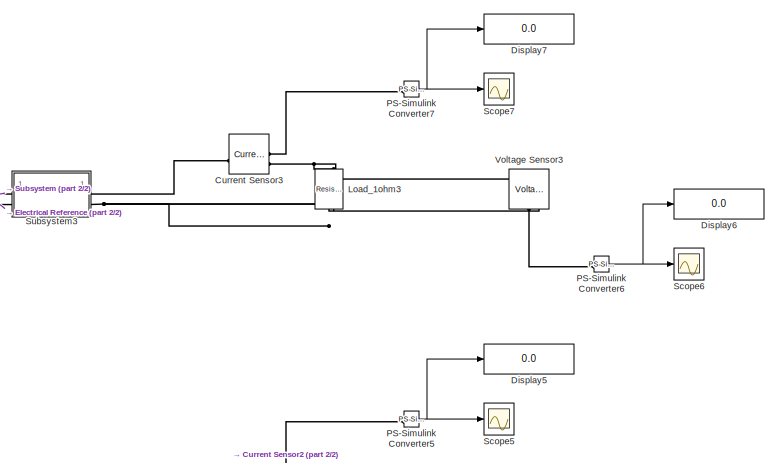
[diagram: root canvas - part 1/2, top right region]
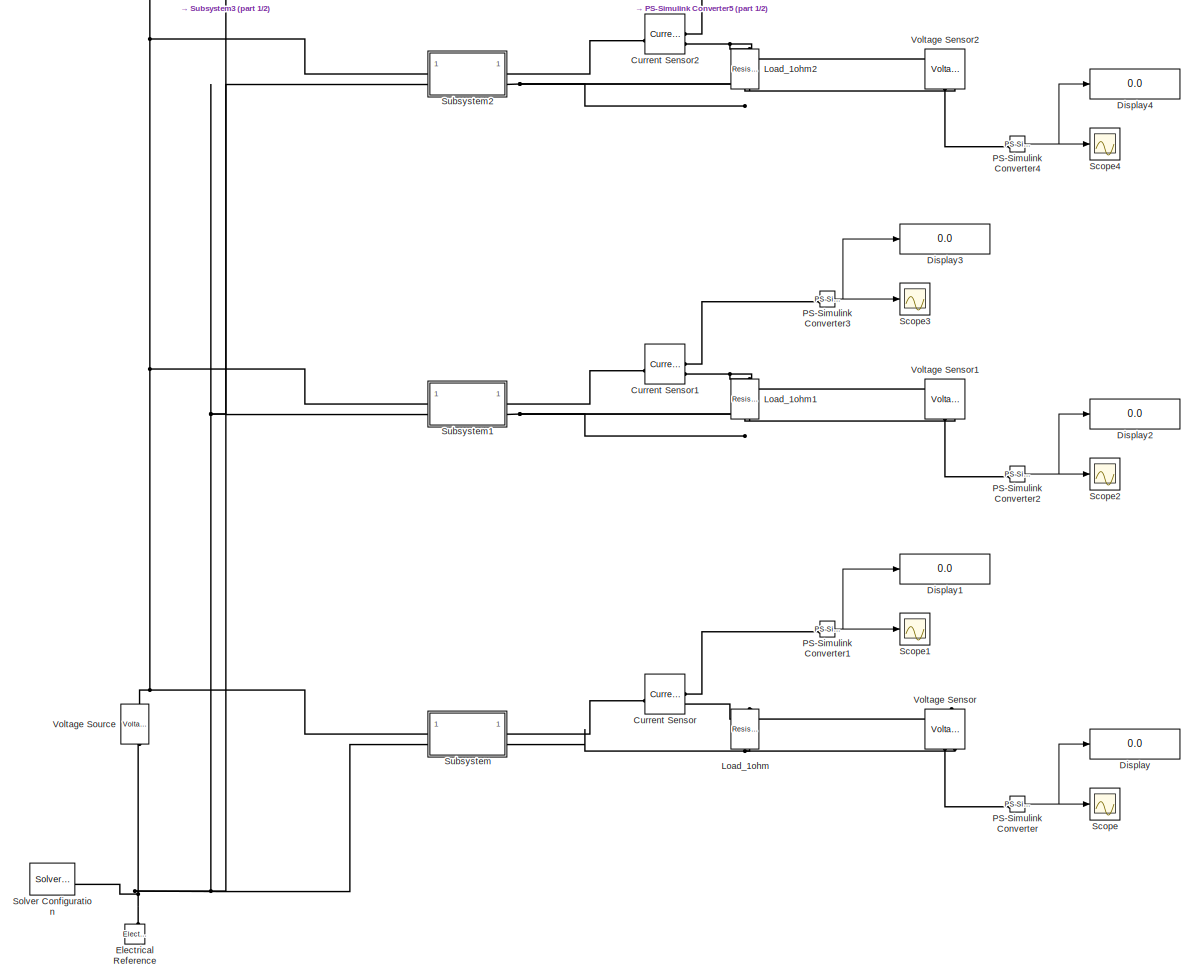
[diagram: root canvas - part 2/2, full width, middle band]
MODEL slx_59cdadc9b2fa
KIND model
CONFIG AbsTol = auto
CONFIG EnableMultiTasking = off
CONFIG FixedStep = auto
CONFIG MaxStep = auto
CONFIG MinStep = auto
CONFIG RelTol = 1e-3
CONFIG SampleTimeConstraint = Unconstrained
CONFIG SolverName = VariableStepAuto
CONFIG StartTime = 0.0
CONFIG StopTime = 1
BLOCK [Reference] Current Sensor  REF=fl_lib/Electrical/Electrical Sensors/Current Sensor
  SourceBlock = fl_lib/Electrical/Electrical Sensors/Current Sensor
  SourceType = Current Sensor
BLOCK [Reference] Current Sensor1  REF=fl_lib/Electrical/Electrical Sensors/Current Sensor
  SourceBlock = fl_lib/Electrical/Electrical Sensors/Current Sensor
  SourceType = Current Sensor
BLOCK [Reference] Current Sensor2  REF=fl_lib/Electrical/Electrical Sensors/Current Sensor
  SourceBlock = fl_lib/Electrical/Electrical Sensors/Current Sensor
  SourceType = Current Sensor
BLOCK [Reference] Current Sensor3  REF=fl_lib/Electrical/Electrical Sensors/Current Sensor
  SourceBlock = fl_lib/Electrical/Electrical Sensors/Current Sensor
  SourceType = Current Sensor
BLOCK [Display] Display
  Decimation = 1
BLOCK [Display] Display1
  Decimation = 1
BLOCK [Display] Display2
  Decimation = 1
BLOCK [Display] Display3
  Decimation = 1
BLOCK [Display] Display4
  Decimation = 1
BLOCK [Display] Display5
  Decimation = 1
BLOCK [Display] Display6
  Decimation = 1
BLOCK [Display] Display7
  Decimation = 1
BLOCK [Reference] Electrical Reference  REF=fl_lib/Electrical/Electrical Elements/Electrical Reference
  NameLocation = right
  SourceBlock = fl_lib/Electrical/Electrical Elements/Electrical Reference
  SourceType = Electrical Reference
BLOCK [Reference] Load_1ohm  REF=fl_lib/Electrical/Electrical Elements/Resistor
  NameLocation = left
  SourceBlock = fl_lib/Electrical/Electrical Elements/Resistor
  SourceType = Resistor
BLOCK [Reference] Load_1ohm1  REF=fl_lib/Electrical/Electrical Elements/Resistor
  NameLocation = left
  SourceBlock = fl_lib/Electrical/Electrical Elements/Resistor
  SourceType = Resistor
BLOCK [Reference] Load_1ohm2  REF=fl_lib/Electrical/Electrical Elements/Resistor
  NameLocation = left
  SourceBlock = fl_lib/Electrical/Electrical Elements/Resistor
  SourceType = Resistor
BLOCK [Reference] Load_1ohm3  REF=fl_lib/Electrical/Electrical Elements/Resistor
  NameLocation = left
  SourceBlock = fl_lib/Electrical/Electrical Elements/Resistor
  SourceType = Resistor
BLOCK [Reference] PS-Simulink Converter  REF=nesl_utility/PS-Simulink
Converter
  SourceBlock = nesl_utility/PS-Simulink\nConverter
  SourceType = PS-Simulink\nConverter
BLOCK [Reference] PS-Simulink Converter1  REF=nesl_utility/PS-Simulink
Converter
  SourceBlock = nesl_utility/PS-Simulink\nConverter
  SourceType = PS-Simulink\nConverter
BLOCK [Reference] PS-Simulink Converter2  REF=nesl_utility/PS-Simulink
Converter
  SourceBlock = nesl_utility/PS-Simulink\nConverter
  SourceType = PS-Simulink\nConverter
BLOCK [Reference] PS-Simulink Converter3  REF=nesl_utility/PS-Simulink
Converter
  SourceBlock = nesl_utility/PS-Simulink\nConverter
  SourceType = PS-Simulink\nConverter
BLOCK [Reference] PS-Simulink Converter4  REF=nesl_utility/PS-Simulink
Converter
  SourceBlock = nesl_utility/PS-Simulink\nConverter
  SourceType = PS-Simulink\nConverter
BLOCK [Reference] PS-Simulink Converter5  REF=nesl_utility/PS-Simulink
Converter
  SourceBlock = nesl_utility/PS-Simulink\nConverter
  SourceType = PS-Simulink\nConverter
BLOCK [Reference] PS-Simulink Converter6  REF=nesl_utility/PS-Simulink
Converter
  SourceBlock = nesl_utility/PS-Simulink\nConverter
  SourceType = PS-Simulink\nConverter
BLOCK [Reference] PS-Simulink Converter7  REF=nesl_utility/PS-Simulink
Converter
  SourceBlock = nesl_utility/PS-Simulink\nConverter
  SourceType = PS-Simulink\nConverter
BLOCK [Scope] Scope
  Floating = off
  NumInputPorts = 1
  ScopeSpecificationString = Simulink.scopes.TimeScopeBlockCfg('CurrentConfiguration', extmgr.ConfigurationSet(extmgr.Configuration('Core','General UI',true),extmgr.Configuration('Core','Source UI',true),extmgr.Configuration('Sources','WiredSimulink',true),extmgr.Configuration('Visuals','Time Domain',true,'SerializedDisplays',{struct('MinYLimReal','10.01162','MaxYLimReal','10.01211','YLabelReal','','MinYLimMag','10.01162','Ma...<+1430ch>
BLOCK [Scope] Scope1
  Floating = off
  NumInputPorts = 1
  ScopeSpecificationString = Simulink.scopes.TimeScopeBlockCfg('CurrentConfiguration', extmgr.ConfigurationSet(extmgr.Configuration('Core','General UI',true),extmgr.Configuration('Core','Source UI',true),extmgr.Configuration('Sources','WiredSimulink',true,'DataLoggingVariableName','ScopeData1'),extmgr.Configuration('Visuals','Time Domain',true,'SerializedDisplays',{struct('MinYLimReal','4.24272','MaxYLimReal','4.24321','YLabe...<+1379ch>
BLOCK [Scope] Scope2
  Floating = off
  NumInputPorts = 1
  ScopeSpecificationString = Simulink.scopes.TimeScopeBlockCfg('CurrentConfiguration', extmgr.ConfigurationSet(extmgr.Configuration('Core','General UI',true),extmgr.Configuration('Core','Source UI',true),extmgr.Configuration('Sources','WiredSimulink',true,'DataLoggingVariableName','ScopeData2'),extmgr.Configuration('Visuals','Time Domain',true,'SerializedDisplays',{struct('MinYLimReal','10.01162','MaxYLimReal','10.01211','YLa...<+1470ch>
BLOCK [Scope] Scope3
  Floating = off
  NumInputPorts = 1
  ScopeSpecificationString = Simulink.scopes.TimeScopeBlockCfg('CurrentConfiguration', extmgr.ConfigurationSet(extmgr.Configuration('Core','General UI',true),extmgr.Configuration('Core','Source UI',true),extmgr.Configuration('Sources','WiredSimulink',true,'DataLoggingVariableName','ScopeData3'),extmgr.Configuration('Visuals','Time Domain',true,'SerializedDisplays',{struct('MinYLimReal','4.24272','MaxYLimReal','4.24321','YLabe...<+1379ch>
BLOCK [Scope] Scope4
  Floating = off
  NumInputPorts = 1
  ScopeSpecificationString = Simulink.scopes.TimeScopeBlockCfg('CurrentConfiguration', extmgr.ConfigurationSet(extmgr.Configuration('Core','General UI',true),extmgr.Configuration('Core','Source UI',true),extmgr.Configuration('Sources','WiredSimulink',true,'DataLoggingVariableName','ScopeData4'),extmgr.Configuration('Visuals','Time Domain',true,'SerializedDisplays',{struct('MinYLimReal','10.01162','MaxYLimReal','10.01211','YLa...<+1470ch>
BLOCK [Scope] Scope5
  Floating = off
  NumInputPorts = 1
  ScopeSpecificationString = Simulink.scopes.TimeScopeBlockCfg('CurrentConfiguration', extmgr.ConfigurationSet(extmgr.Configuration('Core','General UI',true),extmgr.Configuration('Core','Source UI',true),extmgr.Configuration('Sources','WiredSimulink',true,'DataLoggingVariableName','ScopeData5'),extmgr.Configuration('Visuals','Time Domain',true,'SerializedDisplays',{struct('MinYLimReal','4.24272','MaxYLimReal','4.24321','YLabe...<+1379ch>
BLOCK [Scope] Scope6
  Floating = off
  NumInputPorts = 1
  ScopeSpecificationString = Simulink.scopes.TimeScopeBlockCfg('CurrentConfiguration', extmgr.ConfigurationSet(extmgr.Configuration('Core','General UI',true),extmgr.Configuration('Core','Source UI',true),extmgr.Configuration('Sources','WiredSimulink',true,'DataLoggingVariableName','ScopeData6'),extmgr.Configuration('Visuals','Time Domain',true,'SerializedDisplays',{struct('MinYLimReal','10.01162','MaxYLimReal','10.01211','YLa...<+1470ch>
BLOCK [Scope] Scope7
  Floating = off
  NumInputPorts = 1
  ScopeSpecificationString = Simulink.scopes.TimeScopeBlockCfg('CurrentConfiguration', extmgr.ConfigurationSet(extmgr.Configuration('Core','General UI',true),extmgr.Configuration('Core','Source UI',true),extmgr.Configuration('Sources','WiredSimulink',true,'DataLoggingVariableName','ScopeData7'),extmgr.Configuration('Visuals','Time Domain',true,'SerializedDisplays',{struct('MinYLimReal','4.24272','MaxYLimReal','4.24321','YLabe...<+1379ch>
BLOCK [Reference] Solver Configuration  REF=nesl_utility/Solver
Configuration
  SourceBlock = nesl_utility/Solver\nConfiguration
  SourceType = Solver\nConfiguration
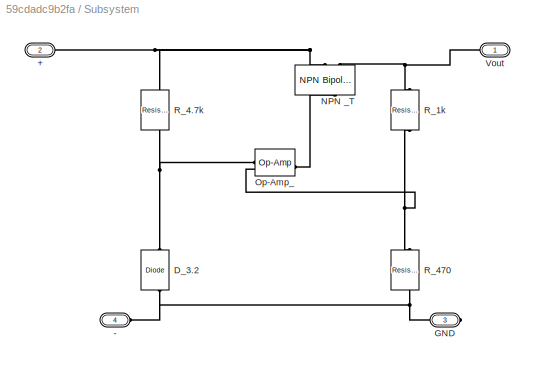
BLOCK [SubSystem] Subsystem
BLOCK [PMIOPort] Subsystem/+
  Port = 2
  Side = Left
BLOCK [PMIOPort] Subsystem/-
  Port = 4
  Side = Left
BLOCK [Reference] Subsystem/D_3.2  REF=ee_lib/Semiconductors &
Converters/Diode
  NameLocation = right
  SourceBlock = ee_lib/Semiconductors &\nConverters/Diode
  SourceType = Diode
BLOCK [PMIOPort] Subsystem/GND
  Port = 3
  Side = Right
BLOCK [Reference] Subsystem/NPN _T  REF=ee_lib/Semiconductors &
Converters/NPN Bipolar
Transistor
  NameLocation = right
  SourceBlock = ee_lib/Semiconductors &\nConverters/NPN Bipolar\nTransistor
  SourceType = NPN Bipolar\nTransistor
BLOCK [Reference] Subsystem/Op-Amp_  REF=fl_lib/Electrical/Electrical Elements/Op-Amp
  SourceBlock = fl_lib/Electrical/Electrical Elements/Op-Amp
  SourceType = Op-Amp
BLOCK [Reference] Subsystem/R_1k  REF=fl_lib/Electrical/Electrical Elements/Resistor
  NameLocation = left
  SourceBlock = fl_lib/Electrical/Electrical Elements/Resistor
  SourceType = Resistor
BLOCK [Reference] Subsystem/R_4.7k  REF=fl_lib/Electrical/Electrical Elements/Resistor
  NameLocation = left
  SourceBlock = fl_lib/Electrical/Electrical Elements/Resistor
  SourceType = Resistor
BLOCK [Reference] Subsystem/R_470  REF=fl_lib/Electrical/Electrical Elements/Resistor
  NameLocation = left
  SourceBlock = fl_lib/Electrical/Electrical Elements/Resistor
  SourceType = Resistor
BLOCK [PMIOPort] Subsystem/Vout
  Side = Right
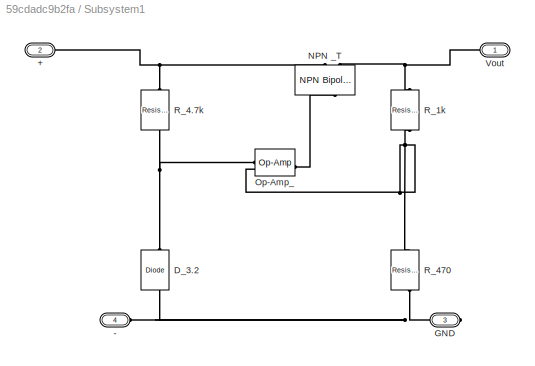
BLOCK [SubSystem] Subsystem1
BLOCK [PMIOPort] Subsystem1/+
  Port = 2
  Side = Left
BLOCK [PMIOPort] Subsystem1/-
  Port = 4
  Side = Left
BLOCK [Reference] Subsystem1/D_3.2  REF=ee_lib/Semiconductors &
Converters/Diode
  NameLocation = right
  SourceBlock = ee_lib/Semiconductors &\nConverters/Diode
  SourceType = Diode
BLOCK [PMIOPort] Subsystem1/GND
  Port = 3
  Side = Right
BLOCK [Reference] Subsystem1/NPN _T  REF=ee_lib/Semiconductors &
Converters/NPN Bipolar
Transistor
  NameLocation = right
  SourceBlock = ee_lib/Semiconductors &\nConverters/NPN Bipolar\nTransistor
  SourceType = NPN Bipolar\nTransistor
BLOCK [Reference] Subsystem1/Op-Amp_  REF=fl_lib/Electrical/Electrical Elements/Op-Amp
  SourceBlock = fl_lib/Electrical/Electrical Elements/Op-Amp
  SourceType = Op-Amp
BLOCK [Reference] Subsystem1/R_1k  REF=fl_lib/Electrical/Electrical Elements/Resistor
  NameLocation = left
  SourceBlock = fl_lib/Electrical/Electrical Elements/Resistor
  SourceType = Resistor
BLOCK [Reference] Subsystem1/R_4.7k  REF=fl_lib/Electrical/Electrical Elements/Resistor
  NameLocation = left
  SourceBlock = fl_lib/Electrical/Electrical Elements/Resistor
  SourceType = Resistor
BLOCK [Reference] Subsystem1/R_470  REF=fl_lib/Electrical/Electrical Elements/Resistor
  NameLocation = left
  SourceBlock = fl_lib/Electrical/Electrical Elements/Resistor
  SourceType = Resistor
BLOCK [PMIOPort] Subsystem1/Vout
  Side = Right
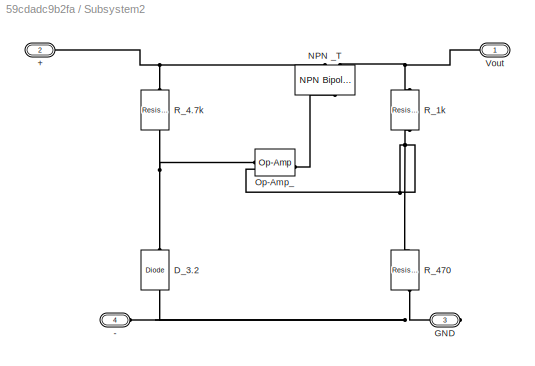
BLOCK [SubSystem] Subsystem2
BLOCK [PMIOPort] Subsystem2/+
  Port = 2
  Side = Left
BLOCK [PMIOPort] Subsystem2/-
  Port = 4
  Side = Left
BLOCK [Reference] Subsystem2/D_3.2  REF=ee_lib/Semiconductors &
Converters/Diode
  NameLocation = right
  SourceBlock = ee_lib/Semiconductors &\nConverters/Diode
  SourceType = Diode
BLOCK [PMIOPort] Subsystem2/GND
  Port = 3
  Side = Right
BLOCK [Reference] Subsystem2/NPN _T  REF=ee_lib/Semiconductors &
Converters/NPN Bipolar
Transistor
  NameLocation = right
  SourceBlock = ee_lib/Semiconductors &\nConverters/NPN Bipolar\nTransistor
  SourceType = NPN Bipolar\nTransistor
BLOCK [Reference] Subsystem2/Op-Amp_  REF=fl_lib/Electrical/Electrical Elements/Op-Amp
  SourceBlock = fl_lib/Electrical/Electrical Elements/Op-Amp
  SourceType = Op-Amp
BLOCK [Reference] Subsystem2/R_1k  REF=fl_lib/Electrical/Electrical Elements/Resistor
  NameLocation = left
  SourceBlock = fl_lib/Electrical/Electrical Elements/Resistor
  SourceType = Resistor
BLOCK [Reference] Subsystem2/R_4.7k  REF=fl_lib/Electrical/Electrical Elements/Resistor
  NameLocation = left
  SourceBlock = fl_lib/Electrical/Electrical Elements/Resistor
  SourceType = Resistor
BLOCK [Reference] Subsystem2/R_470  REF=fl_lib/Electrical/Electrical Elements/Resistor
  NameLocation = left
  SourceBlock = fl_lib/Electrical/Electrical Elements/Resistor
  SourceType = Resistor
BLOCK [PMIOPort] Subsystem2/Vout
  Side = Right
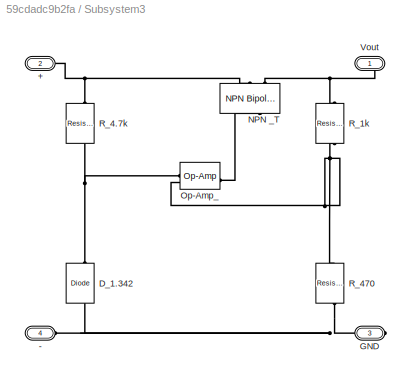
BLOCK [SubSystem] Subsystem3
BLOCK [PMIOPort] Subsystem3/+
  Port = 2
  Side = Left
BLOCK [PMIOPort] Subsystem3/-
  Port = 4
  Side = Left
BLOCK [Reference] Subsystem3/D_1.342  REF=ee_lib/Semiconductors &
Converters/Diode
  NameLocation = right
  SourceBlock = ee_lib/Semiconductors &\nConverters/Diode
  SourceType = Diode
BLOCK [PMIOPort] Subsystem3/GND
  Port = 3
  Side = Right
BLOCK [Reference] Subsystem3/NPN _T  REF=ee_lib/Semiconductors &
Converters/NPN Bipolar
Transistor
  NameLocation = top
  SourceBlock = ee_lib/Semiconductors &\nConverters/NPN Bipolar\nTransistor
  SourceType = NPN Bipolar\nTransistor
BLOCK [Reference] Subsystem3/Op-Amp_  REF=fl_lib/Electrical/Electrical Elements/Op-Amp
  SourceBlock = fl_lib/Electrical/Electrical Elements/Op-Amp
  SourceType = Op-Amp
BLOCK [Reference] Subsystem3/R_1k  REF=fl_lib/Electrical/Electrical Elements/Resistor
  NameLocation = left
  SourceBlock = fl_lib/Electrical/Electrical Elements/Resistor
  SourceType = Resistor
BLOCK [Reference] Subsystem3/R_4.7k  REF=fl_lib/Electrical/Electrical Elements/Resistor
  NameLocation = left
  SourceBlock = fl_lib/Electrical/Electrical Elements/Resistor
  SourceType = Resistor
BLOCK [Reference] Subsystem3/R_470  REF=fl_lib/Electrical/Electrical Elements/Resistor
  NameLocation = left
  SourceBlock = fl_lib/Electrical/Electrical Elements/Resistor
  SourceType = Resistor
BLOCK [PMIOPort] Subsystem3/Vout
  Side = Right
BLOCK [Reference] Voltage Sensor  REF=fl_lib/Electrical/Electrical Sensors/Voltage Sensor
  NameLocation = right
  SourceBlock = fl_lib/Electrical/Electrical Sensors/Voltage Sensor
  SourceType = Voltage Sensor
BLOCK [Reference] Voltage Sensor1  REF=fl_lib/Electrical/Electrical Sensors/Voltage Sensor
  NameLocation = right
  SourceBlock = fl_lib/Electrical/Electrical Sensors/Voltage Sensor
  SourceType = Voltage Sensor
BLOCK [Reference] Voltage Sensor2  REF=fl_lib/Electrical/Electrical Sensors/Voltage Sensor
  NameLocation = right
  SourceBlock = fl_lib/Electrical/Electrical Sensors/Voltage Sensor
  SourceType = Voltage Sensor
BLOCK [Reference] Voltage Sensor3  REF=fl_lib/Electrical/Electrical Sensors/Voltage Sensor
  NameLocation = right
  SourceBlock = fl_lib/Electrical/Electrical Sensors/Voltage Sensor
  SourceType = Voltage Sensor
BLOCK [Reference] Voltage Source  REF=ee_lib/Sources/Voltage Source
  NameLocation = right
  SourceBlock = ee_lib/Sources/Voltage Source
  SourceType = Voltage Source
NET PS-Simulink Converter1:1 -> Display1:1, Scope1:1
NET PS-Simulink Converter2:1 -> Display2:1, Scope2:1
NET PS-Simulink Converter3:1 -> Display3:1, Scope3:1
NET PS-Simulink Converter4:1 -> Display4:1, Scope4:1
NET PS-Simulink Converter5:1 -> Display5:1, Scope5:1
NET PS-Simulink Converter6:1 -> Display6:1, Scope6:1
NET PS-Simulink Converter7:1 -> Display7:1, Scope7:1
NET PS-Simulink Converter:1 -> Display:1, Scope:1
PLINE Current Sensor1:LConn1 -- Subsystem1:RConn1
PLINE Current Sensor1:RConn1 -- PS-Simulink Converter3:LConn1
PNET net1: Current Sensor1:RConn2 -- Load_1ohm1:LConn1 -- Voltage Sensor1:LConn1
PLINE Current Sensor2:LConn1 -- Subsystem2:RConn1
PLINE Current Sensor2:RConn1 -- PS-Simulink Converter5:LConn1
PNET net2: Current Sensor2:RConn2 -- Load_1ohm2:LConn1 -- Voltage Sensor2:LConn1
PLINE Current Sensor3:LConn1 -- Subsystem3:RConn1
PLINE Current Sensor3:RConn1 -- PS-Simulink Converter7:LConn1
PNET net3: Current Sensor3:RConn2 -- Load_1ohm3:LConn1 -- Voltage Sensor3:LConn1
PLINE Current Sensor:LConn1 -- Subsystem:RConn1
PLINE Current Sensor:RConn1 -- PS-Simulink Converter1:LConn1
PNET net4: Current Sensor:RConn2 -- Load_1ohm:LConn1 -- Voltage Sensor:LConn1
PNET net5: Electrical Reference:LConn1 -- Solver Configuration:RConn1 -- Subsystem1:LConn2 -- Subsystem2:LConn2 -- Subsystem3:LConn2 -- Subsystem:LConn2 -- Voltage Source:RConn1
PNET net6: Load_1ohm1:RConn1 -- Subsystem1:RConn2 -- Voltage Sensor1:RConn2
PNET net7: Load_1ohm2:RConn1 -- Subsystem2:RConn2 -- Voltage Sensor2:RConn2
PNET net8: Load_1ohm3:RConn1 -- Subsystem3:RConn2 -- Voltage Sensor3:RConn2
PNET net9: Load_1ohm:RConn1 -- Subsystem:RConn2 -- Voltage Sensor:RConn2
PLINE PS-Simulink Converter2:LConn1 -- Voltage Sensor1:RConn1
PLINE PS-Simulink Converter4:LConn1 -- Voltage Sensor2:RConn1
PLINE PS-Simulink Converter6:LConn1 -- Voltage Sensor3:RConn1
PLINE PS-Simulink Converter:LConn1 -- Voltage Sensor:RConn1
PNET net10: Subsystem/+:RConn1 -- Subsystem/NPN _T:RConn1 -- Subsystem/R_4.7k:LConn1
PNET net11: Subsystem/-:RConn1 -- Subsystem/D_3.2:LConn1 -- Subsystem/GND:RConn1 -- Subsystem/R_470:RConn1
PNET net12: Subsystem/D_3.2:RConn1 -- Subsystem/Op-Amp_:LConn1 -- Subsystem/R_4.7k:RConn1
PLINE Subsystem/NPN _T:LConn1 -- Subsystem/Op-Amp_:RConn1
PNET net13: Subsystem/NPN _T:RConn2 -- Subsystem/R_1k:LConn1 -- Subsystem/Vout:RConn1
PNET net14: Subsystem/Op-Amp_:LConn2 -- Subsystem/R_1k:RConn1 -- Subsystem/R_470:LConn1
PNET net15: Subsystem1/+:RConn1 -- Subsystem1/NPN _T:RConn1 -- Subsystem1/R_4.7k:LConn1
PNET net16: Subsystem1/-:RConn1 -- Subsystem1/D_3.2:LConn1 -- Subsystem1/GND:RConn1 -- Subsystem1/R_470:RConn1
PNET net17: Subsystem1/D_3.2:RConn1 -- Subsystem1/Op-Amp_:LConn1 -- Subsystem1/R_4.7k:RConn1
PLINE Subsystem1/NPN _T:LConn1 -- Subsystem1/Op-Amp_:RConn1
PNET net18: Subsystem1/NPN _T:RConn2 -- Subsystem1/R_1k:LConn1 -- Subsystem1/Vout:RConn1
PNET net19: Subsystem1/Op-Amp_:LConn2 -- Subsystem1/R_1k:RConn1 -- Subsystem1/R_470:LConn1
PNET net20: Subsystem1:LConn1 -- Subsystem2:LConn1 -- Subsystem3:LConn1 -- Subsystem:LConn1 -- Voltage Source:LConn1
PNET net21: Subsystem2/+:RConn1 -- Subsystem2/NPN _T:RConn1 -- Subsystem2/R_4.7k:LConn1
PNET net22: Subsystem2/-:RConn1 -- Subsystem2/D_3.2:LConn1 -- Subsystem2/GND:RConn1 -- Subsystem2/R_470:RConn1
PNET net23: Subsystem2/D_3.2:RConn1 -- Subsystem2/Op-Amp_:LConn1 -- Subsystem2/R_4.7k:RConn1
PLINE Subsystem2/NPN _T:LConn1 -- Subsystem2/Op-Amp_:RConn1
PNET net24: Subsystem2/NPN _T:RConn2 -- Subsystem2/R_1k:LConn1 -- Subsystem2/Vout:RConn1
PNET net25: Subsystem2/Op-Amp_:LConn2 -- Subsystem2/R_1k:RConn1 -- Subsystem2/R_470:LConn1
PNET net26: Subsystem3/+:RConn1 -- Subsystem3/NPN _T:RConn1 -- Subsystem3/R_4.7k:LConn1
PNET net27: Subsystem3/-:RConn1 -- Subsystem3/D_1.342:LConn1 -- Subsystem3/GND:RConn1 -- Subsystem3/R_470:RConn1
PNET net28: Subsystem3/D_1.342:RConn1 -- Subsystem3/Op-Amp_:LConn1 -- Subsystem3/R_4.7k:RConn1
PLINE Subsystem3/NPN _T:LConn1 -- Subsystem3/Op-Amp_:RConn1
PNET net29: Subsystem3/NPN _T:RConn2 -- Subsystem3/R_1k:LConn1 -- Subsystem3/Vout:RConn1
PNET net30: Subsystem3/Op-Amp_:LConn2 -- Subsystem3/R_1k:RConn1 -- Subsystem3/R_470:LConn1
note: NET lines group one-source signal fan-out (src -> all destinations, sorted); 1:1 wires keep LINE; PNET lines group multi-terminal physical nets as a canonical sorted terminal list (undirected conserving connections); 2-terminal nets keep the pairwise PLINE form
